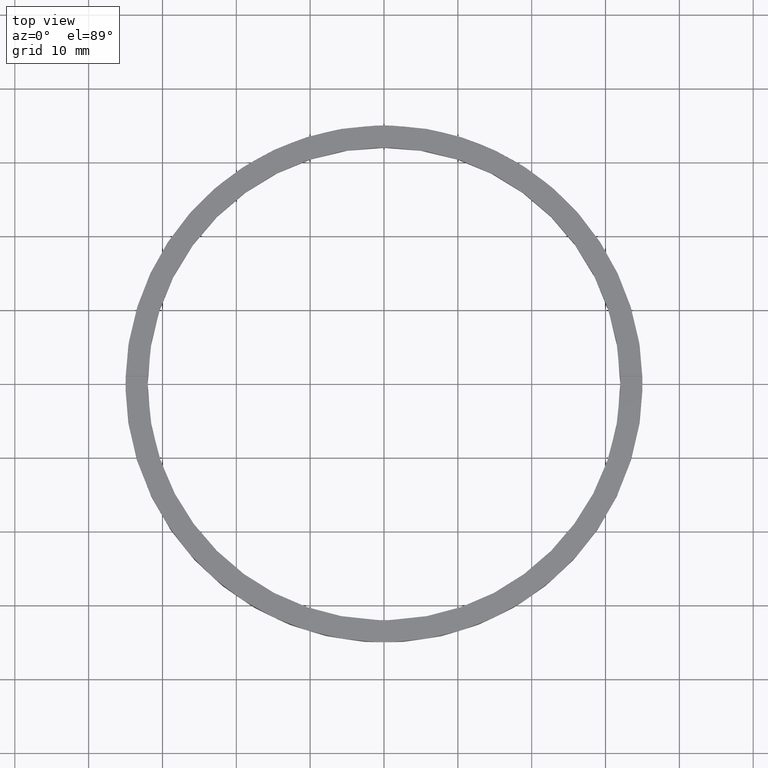
[diagram: clean part render]
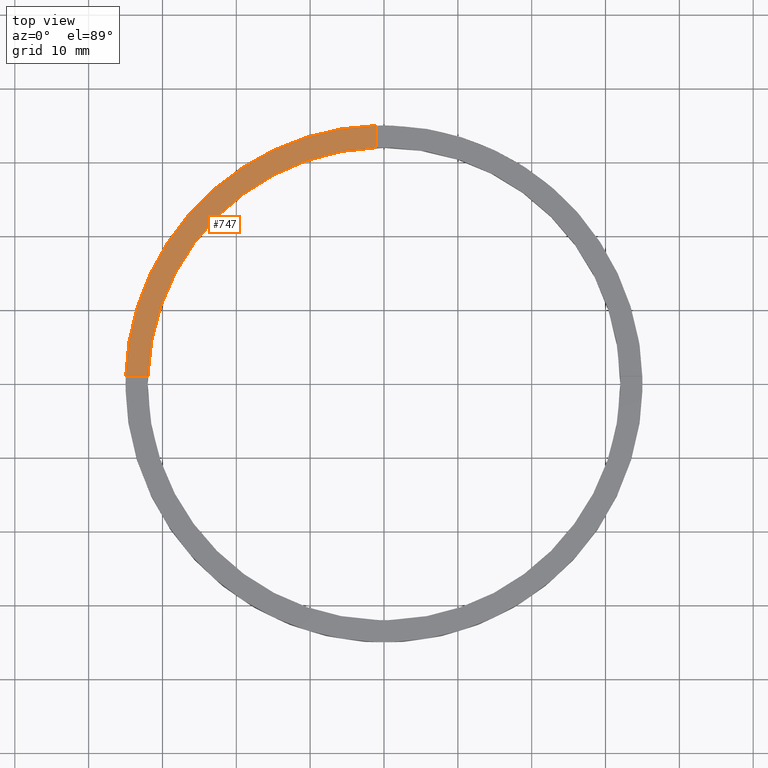
[diagram: same view with one face highlighted and labeled with its STEP entity id]
A machine part, top view. The second image highlights one B-rep face of the part: STEP entity #747.
In plain terms, the highlighted planar face has unit normal (0, 0, 1).
Its self-contained STEP definition (entity closure, byte-faithful):
#13 = DIRECTION ( 'NONE',  ( 1.000000000000000000, 0.000000000000000000, -0.000000000000000000 ) ) ;
#32 = AXIS2_PLACEMENT_3D ( 'NONE', #642, #211, #220 ) ;
#65 = EDGE_CURVE ( 'NONE', #453, #95, #700, .T. ) ;
#68 = ORIENTED_EDGE ( 'NONE', *, *, #197, .F. ) ;
#95 = VERTEX_POINT ( 'NONE', #284 ) ;
#192 = FACE_OUTER_BOUND ( 'NONE', #625, .T. ) ;
#197 = EDGE_CURVE ( 'NONE', #95, #633, #766, .T. ) ;
#206 = VECTOR ( 'NONE', #258, 1000.000000000000000 ) ;
#211 = DIRECTION ( 'NONE',  ( 0.000000000000000000, 0.000000000000000000, 1.000000000000000000 ) ) ;
#220 = DIRECTION ( 'NONE',  ( 1.000000000000000000, 0.000000000000000000, 0.000000000000000000 ) ) ;
#234 = EDGE_CURVE ( 'NONE', #439, #633, #251, .T. ) ;
#241 = CARTESIAN_POINT ( 'NONE',  ( -25.00000000000019540, 0.9999999999999751310, 3.500000000000000000 ) ) ;
#251 = CIRCLE ( 'NONE', #324, 35.00000000000000711 ) ;
#258 = DIRECTION ( 'NONE',  ( -0.000000000000000000, -1.000000000000000000, -0.000000000000000000 ) ) ;
#284 = CARTESIAN_POINT ( 'NONE',  ( -31.98437118343894880, 0.9999999999999737987, 3.500000000000000000 ) ) ;
#314 = PLANE ( 'NONE',  #688 ) ;
#319 = CARTESIAN_POINT ( 'NONE',  ( 0.000000000000000000, 0.000000000000000000, 3.500000000000000000 ) ) ;
#324 = AXIS2_PLACEMENT_3D ( 'NONE', #402, #490, #407 ) ;
#358 = ORIENTED_EDGE ( 'NONE', *, *, #721, .F. ) ;
#361 = CARTESIAN_POINT ( 'NONE',  ( -34.98571136907180801, 0.9999999999999733546, 3.500000000000000000 ) ) ;
#402 = CARTESIAN_POINT ( 'NONE',  ( 0.000000000000000000, 0.000000000000000000, 3.500000000000000000 ) ) ;
#407 = DIRECTION ( 'NONE',  ( 1.000000000000000000, 0.000000000000000000, 0.000000000000000000 ) ) ;
#439 = VERTEX_POINT ( 'NONE', #681 ) ;
#453 = VERTEX_POINT ( 'NONE', #716 ) ;
#490 = DIRECTION ( 'NONE',  ( 0.000000000000000000, 0.000000000000000000, 1.000000000000000000 ) ) ;
#508 = VECTOR ( 'NONE', #656, 1000.000000000000000 ) ;
#577 = DIRECTION ( 'NONE',  ( 0.000000000000000000, 0.000000000000000000, 1.000000000000000000 ) ) ;
#625 = EDGE_LOOP ( 'NONE', ( #358, #673, #68, #637 ) ) ;
#633 = VERTEX_POINT ( 'NONE', #361 ) ;
#637 = ORIENTED_EDGE ( 'NONE', *, *, #65, .F. ) ;
#642 = CARTESIAN_POINT ( 'NONE',  ( 0.000000000000000000, 0.000000000000000000, 3.500000000000000000 ) ) ;
#656 = DIRECTION ( 'NONE',  ( -1.000000000000000000, -1.951563910473907735E-16, 0.000000000000000000 ) ) ;
#673 = ORIENTED_EDGE ( 'NONE', *, *, #234, .T. ) ;
#681 = CARTESIAN_POINT ( 'NONE',  ( -1.000000000000024869, 34.98571136907180801, 3.500000000000000000 ) ) ;
#688 = AXIS2_PLACEMENT_3D ( 'NONE', #319, #577, #13 ) ;
#700 = CIRCLE ( 'NONE', #32, 32.00000000000000000 ) ;
#708 = LINE ( 'NONE', #759, #206 ) ;
#716 = CARTESIAN_POINT ( 'NONE',  ( -1.000000000000024869, 31.98437118343894880, 3.500000000000000000 ) ) ;
#721 = EDGE_CURVE ( 'NONE', #439, #453, #708, .T. ) ;
#747 = ADVANCED_FACE ( 'NONE', ( #192 ), #314, .T. ) ;
#759 = CARTESIAN_POINT ( 'NONE',  ( -1.000000000000024869, 25.00000000000000711, 3.500000000000000000 ) ) ;
#766 = LINE ( 'NONE', #241, #508 ) ;